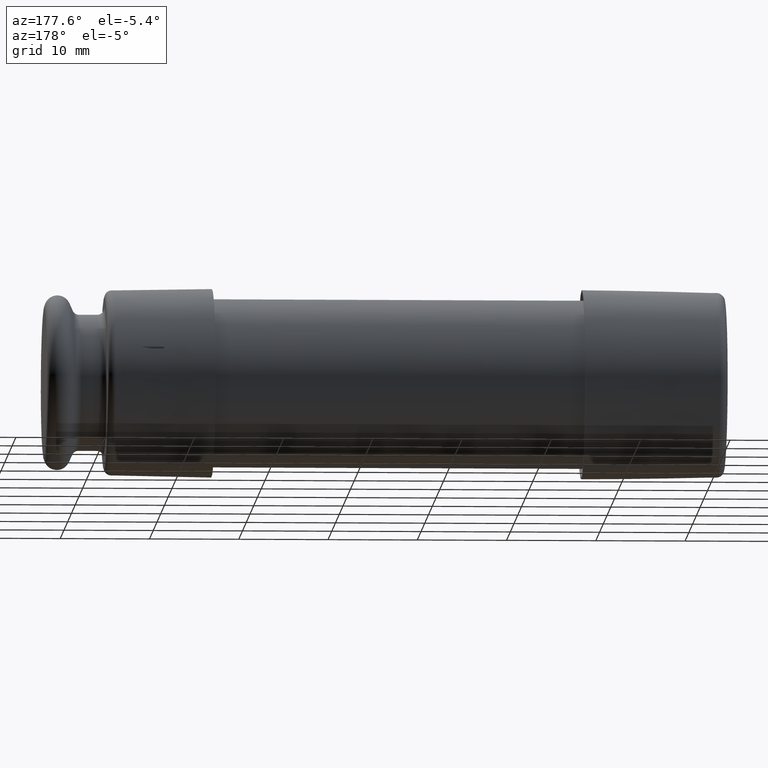
[diagram: clean part render]
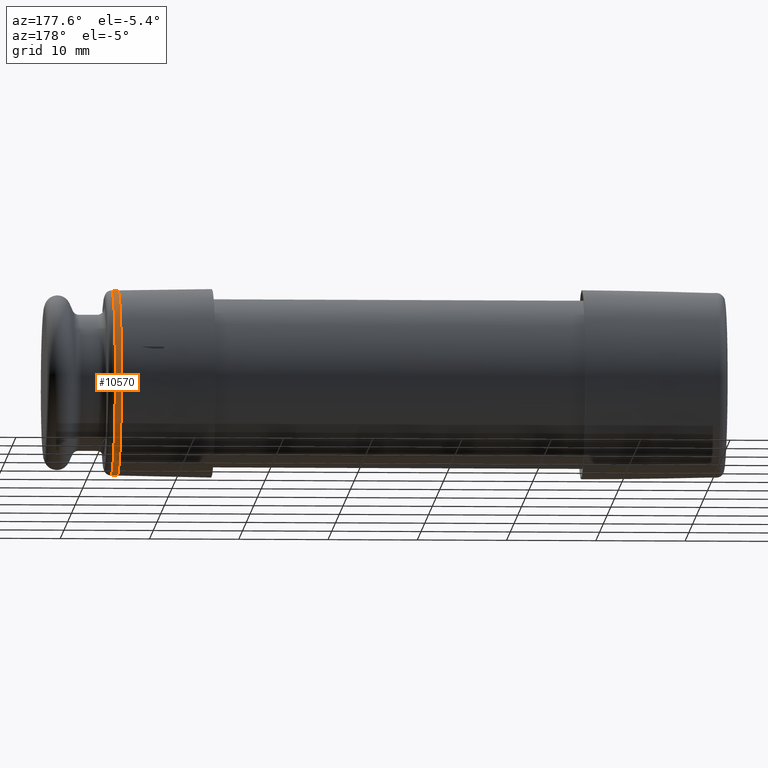
[diagram: same view with one face highlighted and labeled with its STEP entity id]
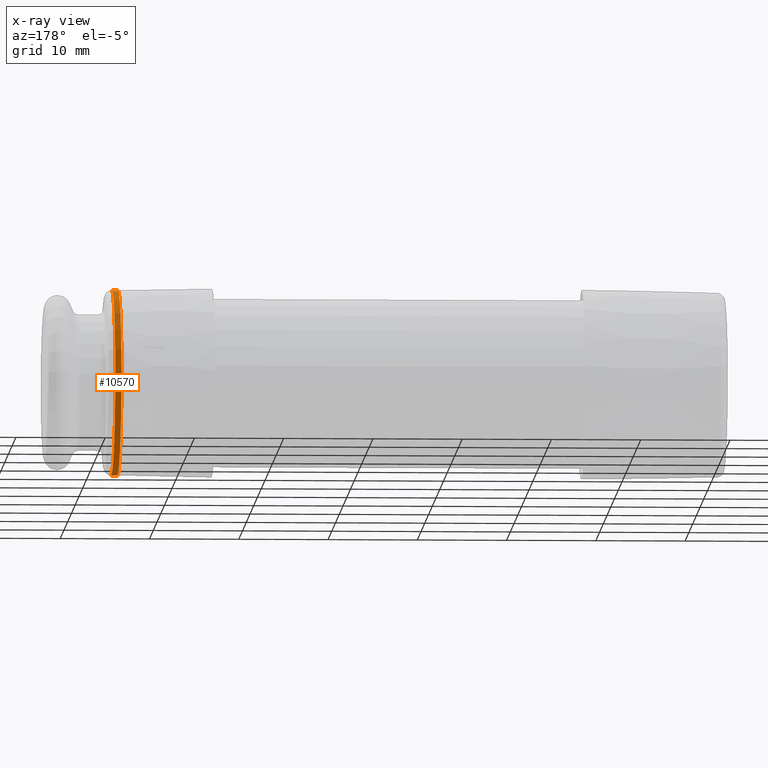
[diagram: x-ray of the same camera — body ghosted, the highlighted face saturated]
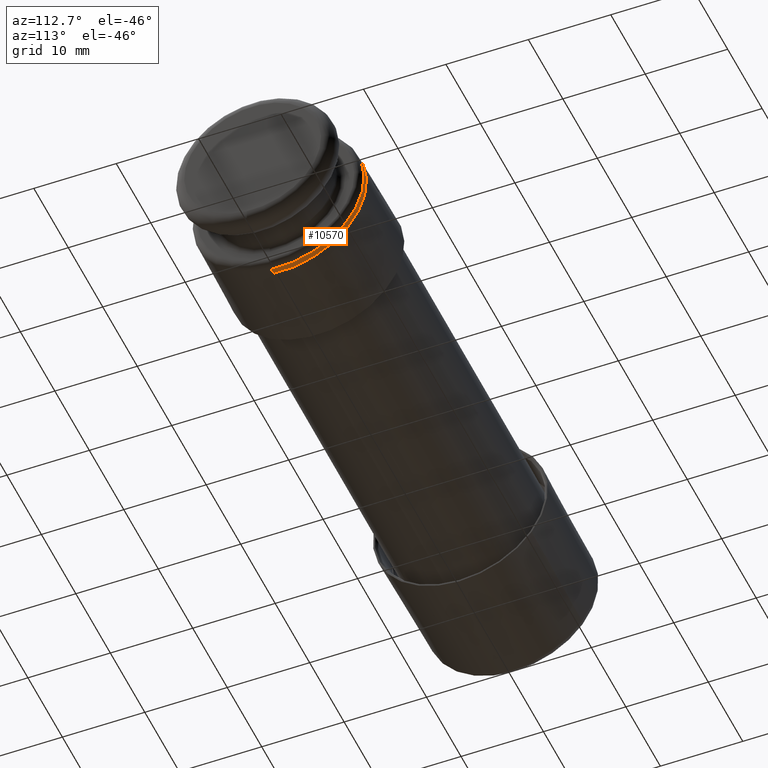
[diagram: same view with one face highlighted and labeled with its STEP entity id]
A machine part, auxiliary view. The second image highlights one B-rep face of the part: STEP entity #10570.
The next image is the same camera in x-ray: the body ghosted, the highlighted face saturated — about 0% of this face is hidden behind the body in this view.
A second angle (auxiliary view) of the same face is appended — the face is thin or edge-on in the first view.
In plain terms, the highlighted cylindrical surface (partial cylindrical patch) has radius 10.3632 mm, axis along (1, 0, -0).
Its self-contained STEP definition (entity closure, byte-faithful):
#1072 = DIRECTION ( 'NONE',  ( 1.000000000000000000, 1.032664680745914000E-014, -2.629012118763709900E-015 ) ) ;
#1283 = VECTOR ( 'NONE', #5503, 39.37007874015748100 ) ;
#2108 = EDGE_CURVE ( 'NONE', #8056, #2840, #5671, .T. ) ;
#2840 = VERTEX_POINT ( 'NONE', #6589 ) ;
#2940 = DIRECTION ( 'NONE',  ( -2.008711760047252300E-015, -0.08610538414068724700, -0.9962860346416507800 ) ) ;
#2961 = VERTEX_POINT ( 'NONE', #9419 ) ;
#3104 = VECTOR ( 'NONE', #7433, 39.37007874015748100 ) ;
#3128 = AXIS2_PLACEMENT_3D ( 'NONE', #9934, #11820, #9169 ) ;
#3315 = CARTESIAN_POINT ( 'NONE',  ( 1.420741720013049000, 0.03513099672942456700, 0.4064847021337873500 ) ) ;
#3832 = AXIS2_PLACEMENT_3D ( 'NONE', #6023, #5062, #9871 ) ;
#4367 = EDGE_CURVE ( 'NONE', #10195, #2961, #9755, .T. ) ;
#4470 = CARTESIAN_POINT ( 'NONE',  ( 1.745741720013048900, 0.03513099672942778000, 0.4064847021337866200 ) ) ;
#5062 = DIRECTION ( 'NONE',  ( 1.000000000000000000, 1.032664680745914000E-014, -2.629012118763709900E-015 ) ) ;
#5190 = CIRCLE ( 'NONE', #3128, 0.4079999999999999700 ) ;
#5503 = DIRECTION ( 'NONE',  ( 1.000000000000000000, 1.032664680745914000E-014, -2.629012118763709900E-015 ) ) ;
#5671 = LINE ( 'NONE', #4470, #1283 ) ;
#5886 = ORIENTED_EDGE ( 'NONE', *, *, #7835, .F. ) ;
#6023 = CARTESIAN_POINT ( 'NONE',  ( 1.745741720013048100, 2.733180348914517200E-014, -6.988876482988542700E-015 ) ) ;
#6206 = ORIENTED_EDGE ( 'NONE', *, *, #2108, .T. ) ;
#6324 = CYLINDRICAL_SURFACE ( 'NONE', #3832, 0.4080000000000000300 ) ;
#6456 = ORIENTED_EDGE ( 'NONE', *, *, #9710, .T. ) ;
#6491 = ORIENTED_EDGE ( 'NONE', *, *, #4367, .F. ) ;
#6589 = CARTESIAN_POINT ( 'NONE',  ( 1.447741720013048900, 0.03513099672942469900, 0.4064847021337873500 ) ) ;
#7433 = DIRECTION ( 'NONE',  ( 1.000000000000000000, 1.032664680745914000E-014, -2.629012118763709900E-015 ) ) ;
#7652 = CARTESIAN_POINT ( 'NONE',  ( 1.420741720013048100, 2.397564327672095200E-014, -6.134447544390337300E-015 ) ) ;
#7835 = EDGE_CURVE ( 'NONE', #2961, #2840, #5190, .T. ) ;
#8056 = VERTEX_POINT ( 'NONE', #3315 ) ;
#8221 = CARTESIAN_POINT ( 'NONE',  ( 1.420741720013047400, -0.03513099672937642500, -0.4064847021337997200 ) ) ;
#9008 = EDGE_LOOP ( 'NONE', ( #6456, #6206, #5886, #6491 ) ) ;
#9169 = DIRECTION ( 'NONE',  ( -2.008711760047252300E-015, -0.08610538414068726100, -0.9962860346416507800 ) ) ;
#9419 = CARTESIAN_POINT ( 'NONE',  ( 1.447741720013047400, -0.03513099672937614000, -0.4064847021337997800 ) ) ;
#9710 = EDGE_CURVE ( 'NONE', #10195, #8056, #11953, .T. ) ;
#9755 = LINE ( 'NONE', #11235, #3104 ) ;
#9871 = DIRECTION ( 'NONE',  ( -2.008711760047252300E-015, -0.08610538414068724700, -0.9962860346416507800 ) ) ;
#9934 = CARTESIAN_POINT ( 'NONE',  ( 1.447741720013048200, 2.425446274052235100E-014, -6.205430871596957600E-015 ) ) ;
#10017 = FACE_OUTER_BOUND ( 'NONE', #9008, .T. ) ;
#10128 = AXIS2_PLACEMENT_3D ( 'NONE', #7652, #1072, #2940 ) ;
#10195 = VERTEX_POINT ( 'NONE', #8221 ) ;
#10570 = ADVANCED_FACE ( 'NONE', ( #10017 ), #6324, .T. ) ;
#11235 = CARTESIAN_POINT ( 'NONE',  ( 1.745741720013047400, -0.03513099672937306700, -0.4064847021338005600 ) ) ;
#11820 = DIRECTION ( 'NONE',  ( 1.000000000000000000, 1.032664680745914000E-014, -2.629012118763709900E-015 ) ) ;
#11953 = CIRCLE ( 'NONE', #10128, 0.4080000000000000300 ) ;